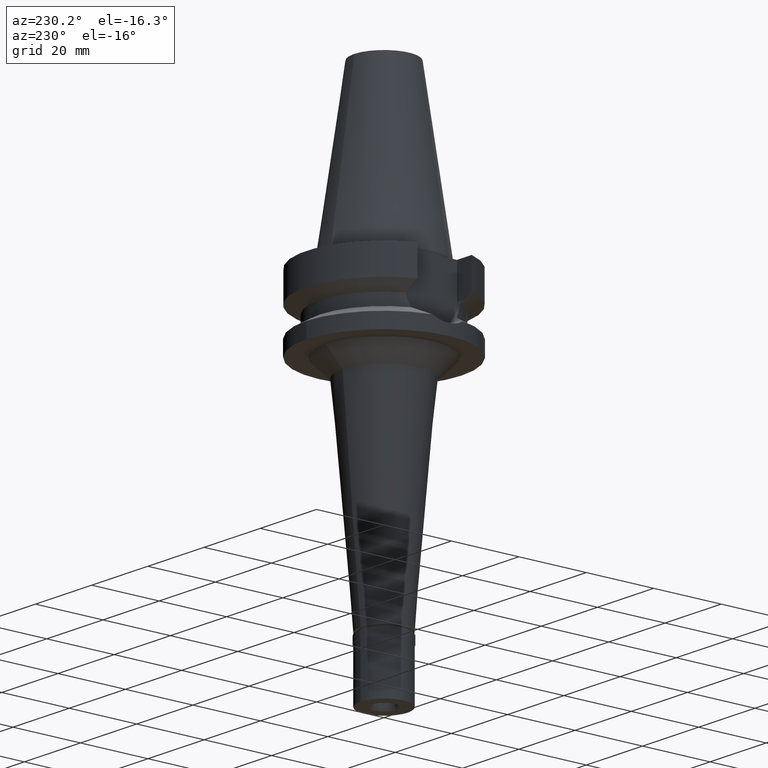
[diagram: clean part render]
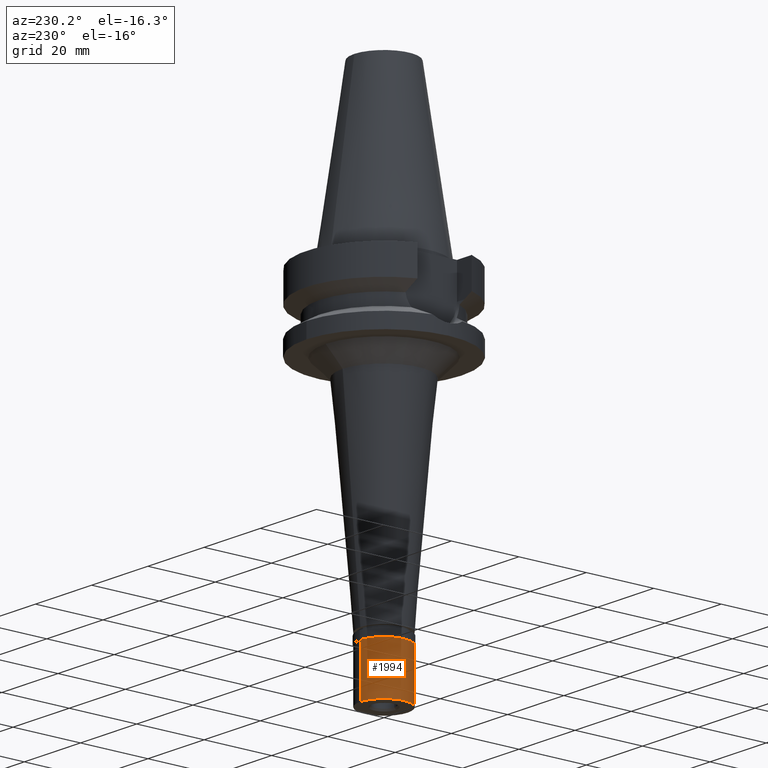
[diagram: same view with one face highlighted and labeled with its STEP entity id]
A machine part, auxiliary view. The second image highlights one B-rep face of the part: STEP entity #1994.
In plain terms, the highlighted cylindrical surface (edge-blend (fillet) strip) has radius 7 mm, axis along (0, 0, 1).
Its self-contained STEP definition (entity closure, byte-faithful):
#13 = CARTESIAN_POINT ( 'NONE',  ( 0.0000000000000000000, 7.000000000000000000, -17.00000000000000000 ) ) ;
#113 = DIRECTION ( 'NONE',  ( 0.0000000000000000000, 0.0000000000000000000, -1.000000000000000000 ) ) ;
#195 = ORIENTED_EDGE ( 'NONE', *, *, #296, .T. ) ;
#296 = EDGE_CURVE ( 'NONE', #2935, #2916, #1252, .T. ) ;
#382 = DIRECTION ( 'NONE',  ( 0.0000000000000000000, 0.0000000000000000000, 1.000000000000000000 ) ) ;
#655 = EDGE_LOOP ( 'NONE', ( #659, #2874, #2242, #195 ) ) ;
#659 = ORIENTED_EDGE ( 'NONE', *, *, #1242, .T. ) ;
#723 = DIRECTION ( 'NONE',  ( 0.0000000000000000000, 0.0000000000000000000, -1.000000000000000000 ) ) ;
#777 = CARTESIAN_POINT ( 'NONE',  ( 0.0000000000000000000, -7.000000000000000000, -17.00000000000000000 ) ) ;
#836 = CYLINDRICAL_SURFACE ( 'NONE', #1122, 7.000000000000000000 ) ;
#949 = DIRECTION ( 'NONE',  ( 0.0000000000000000000, 1.000000000000000000, 0.0000000000000000000 ) ) ;
#988 = DIRECTION ( 'NONE',  ( 0.0000000000000000000, -1.000000000000000000, 0.0000000000000000000 ) ) ;
#1062 = VERTEX_POINT ( 'NONE', #1540 ) ;
#1120 = LINE ( 'NONE', #2040, #2733 ) ;
#1122 = AXIS2_PLACEMENT_3D ( 'NONE', #1515, #382, #1306 ) ;
#1171 = DIRECTION ( 'NONE',  ( 0.0000000000000000000, 0.0000000000000000000, -1.000000000000000000 ) ) ;
#1179 = CARTESIAN_POINT ( 'NONE',  ( 0.0000000000000000000, 0.0000000000000000000, -2.299999999999999822 ) ) ;
#1193 = AXIS2_PLACEMENT_3D ( 'NONE', #1213, #2808, #949 ) ;
#1213 = CARTESIAN_POINT ( 'NONE',  ( 0.0000000000000000000, 0.0000000000000000000, -17.00000000000000000 ) ) ;
#1242 = EDGE_CURVE ( 'NONE', #2916, #2061, #2478, .T. ) ;
#1252 = LINE ( 'NONE', #2167, #2649 ) ;
#1306 = DIRECTION ( 'NONE',  ( 0.0000000000000000000, 1.000000000000000000, 0.0000000000000000000 ) ) ;
#1352 = CARTESIAN_POINT ( 'NONE',  ( 0.0000000000000000000, 7.000000000000000000, -2.299999999999999822 ) ) ;
#1434 = EDGE_CURVE ( 'NONE', #1062, #2935, #2747, .T. ) ;
#1515 = CARTESIAN_POINT ( 'NONE',  ( 0.0000000000000000000, 0.0000000000000000000, -17.85000000000000142 ) ) ;
#1540 = CARTESIAN_POINT ( 'NONE',  ( 0.0000000000000000000, -7.000000000000000000, -2.299999999999999822 ) ) ;
#1981 = FACE_OUTER_BOUND ( 'NONE', #655, .T. ) ;
#1994 = ADVANCED_FACE ( 'NONE', ( #1981 ), #836, .T. ) ;
#2040 = CARTESIAN_POINT ( 'NONE',  ( 0.0000000000000000000, -7.000000000000000000, -2.299999999999999822 ) ) ;
#2061 = VERTEX_POINT ( 'NONE', #777 ) ;
#2167 = CARTESIAN_POINT ( 'NONE',  ( 0.0000000000000000000, 7.000000000000000000, -2.299999999999999822 ) ) ;
#2242 = ORIENTED_EDGE ( 'NONE', *, *, #1434, .T. ) ;
#2478 = CIRCLE ( 'NONE', #1193, 7.000000000000000000 ) ;
#2638 = AXIS2_PLACEMENT_3D ( 'NONE', #1179, #723, #988 ) ;
#2649 = VECTOR ( 'NONE', #113, 1000.000000000000000 ) ;
#2733 = VECTOR ( 'NONE', #1171, 1000.000000000000000 ) ;
#2747 = CIRCLE ( 'NONE', #2638, 7.000000000000000000 ) ;
#2808 = DIRECTION ( 'NONE',  ( 0.0000000000000000000, 0.0000000000000000000, 1.000000000000000000 ) ) ;
#2874 = ORIENTED_EDGE ( 'NONE', *, *, #2922, .F. ) ;
#2916 = VERTEX_POINT ( 'NONE', #13 ) ;
#2922 = EDGE_CURVE ( 'NONE', #1062, #2061, #1120, .T. ) ;
#2935 = VERTEX_POINT ( 'NONE', #1352 ) ;